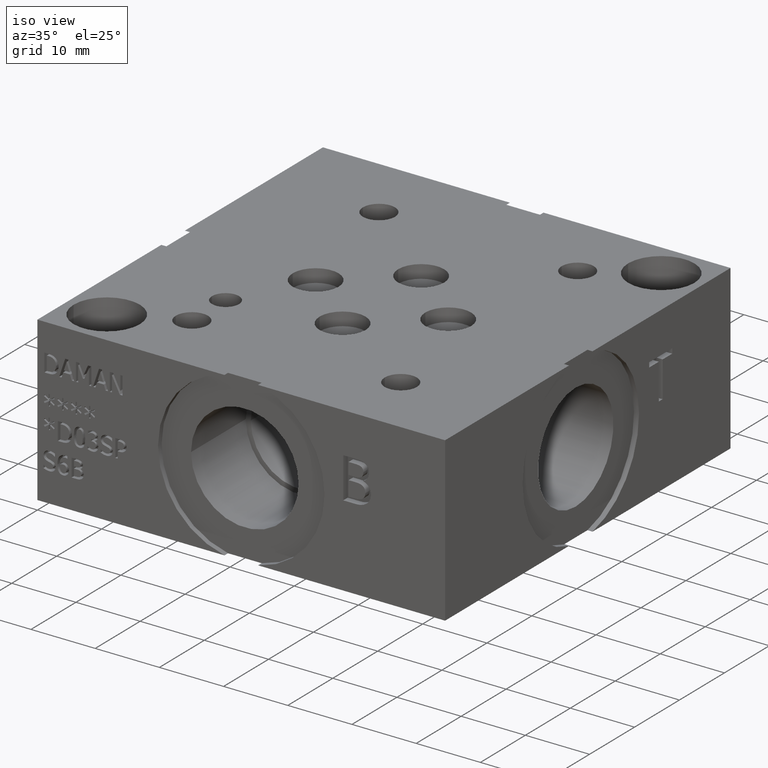
[diagram: clean part render]
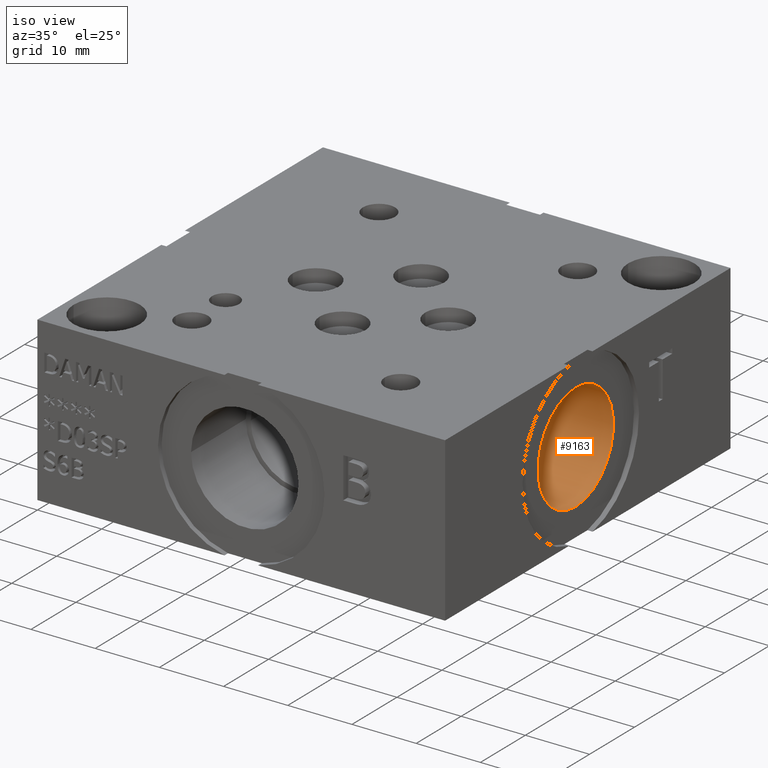
[diagram: same view with one face highlighted and labeled with its STEP entity id]
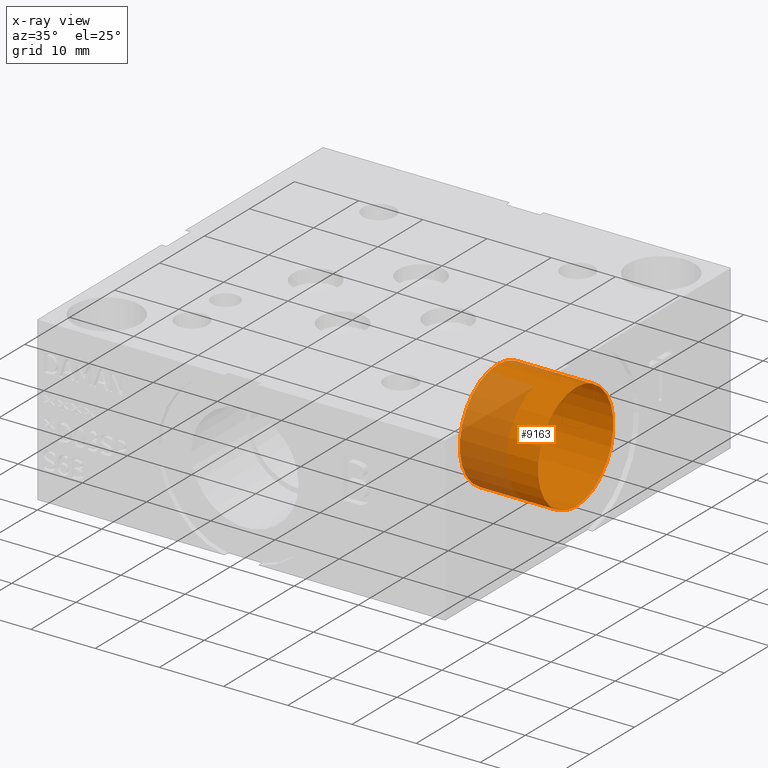
[diagram: x-ray of the same camera — body ghosted, the highlighted face saturated]
A machine part, iso view. The second image highlights one B-rep face of the part: STEP entity #9163.
The next image is the same camera in x-ray: the body ghosted, the highlighted face saturated — about 32% of this face is hidden behind the body in this view.
In plain terms, the highlighted cylindrical surface (bore or boss wall) has radius 8.382 mm, axis along (-1, 0, 0).
Its self-contained STEP definition (entity closure, byte-faithful):
#17=CYLINDRICAL_SURFACE('',#9515,8.382);
#71=CIRCLE('',#9513,8.382);
#72=CIRCLE('',#9514,8.382);
#73=CIRCLE('',#9516,8.382);
#74=CIRCLE('',#9517,8.382);
#907=FACE_OUTER_BOUND('',#1409,.T.);
#1409=EDGE_LOOP('',(#7873,#7874,#7875,#7876,#7877,#7878));
#2322=LINE('',#15536,#3206);
#3206=VECTOR('',#11042,8.382);
#4303=VERTEX_POINT('',#15530);
#4304=VERTEX_POINT('',#15531);
#4305=VERTEX_POINT('',#15535);
#4306=VERTEX_POINT('',#15537);
#5534=EDGE_CURVE('',#4303,#4304,#71,.T.);
#5535=EDGE_CURVE('',#4304,#4303,#72,.T.);
#5536=EDGE_CURVE('',#4304,#4305,#2322,.T.);
#5537=EDGE_CURVE('',#4305,#4306,#73,.T.);
#5538=EDGE_CURVE('',#4306,#4305,#74,.T.);
#7873=ORIENTED_EDGE('',*,*,#5534,.F.);
#7874=ORIENTED_EDGE('',*,*,#5535,.F.);
#7875=ORIENTED_EDGE('',*,*,#5536,.T.);
#7876=ORIENTED_EDGE('',*,*,#5537,.T.);
#7877=ORIENTED_EDGE('',*,*,#5538,.T.);
#7878=ORIENTED_EDGE('',*,*,#5536,.F.);
#9163=ADVANCED_FACE('',(#907),#17,.F.);
#9513=AXIS2_PLACEMENT_3D('',#15532,#11036,#11037);
#9514=AXIS2_PLACEMENT_3D('',#15533,#11038,#11039);
#9515=AXIS2_PLACEMENT_3D('',#15534,#11040,#11041);
#9516=AXIS2_PLACEMENT_3D('',#15538,#11043,#11044);
#9517=AXIS2_PLACEMENT_3D('',#15539,#11045,#11046);
#11036=DIRECTION('center_axis',(-1.,0.,0.));
#11037=DIRECTION('ref_axis',(0.,0.,1.));
#11038=DIRECTION('center_axis',(-1.,0.,0.));
#11039=DIRECTION('ref_axis',(0.,0.,1.));
#11040=DIRECTION('center_axis',(-1.,0.,0.));
#11041=DIRECTION('ref_axis',(0.,0.,-1.));
#11042=DIRECTION('',(-1.,0.,0.));
#11043=DIRECTION('center_axis',(-1.,0.,0.));
#11044=DIRECTION('ref_axis',(0.,0.,1.));
#11045=DIRECTION('center_axis',(-1.,0.,0.));
#11046=DIRECTION('ref_axis',(0.,0.,1.));
#15530=CARTESIAN_POINT('',(62.7126,30.1752,4.318));
#15531=CARTESIAN_POINT('',(62.7126,30.1752,21.082));
#15532=CARTESIAN_POINT('Origin',(62.7126,30.1752,12.7));
#15533=CARTESIAN_POINT('Origin',(62.7126,30.1752,12.7));
#15534=CARTESIAN_POINT('Origin',(56.6166,30.1752,12.7));
#15535=CARTESIAN_POINT('',(50.5206,30.1752,21.082));
#15536=CARTESIAN_POINT('',(56.6166,30.1752,21.082));
#15537=CARTESIAN_POINT('',(50.5206,30.1752,4.318));
#15538=CARTESIAN_POINT('Origin',(50.5206,30.1752,12.7));
#15539=CARTESIAN_POINT('Origin',(50.5206,30.1752,12.7));